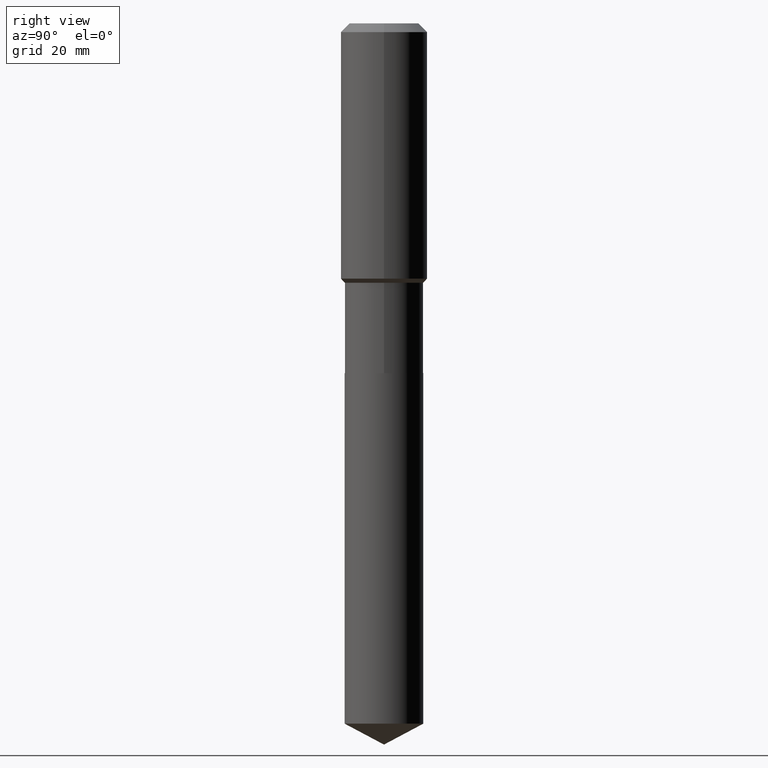
[diagram: clean part render]
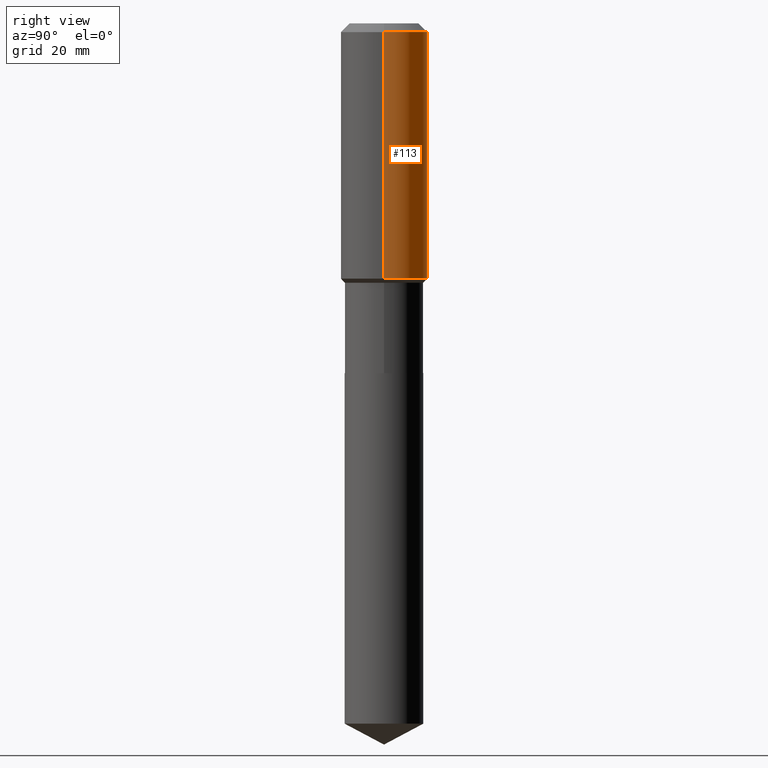
[diagram: same view with one face highlighted and labeled with its STEP entity id]
A machine part, right view. The second image highlights one B-rep face of the part: STEP entity #113.
In plain terms, the highlighted cylindrical surface (partial cylindrical patch) has radius 7.9997 mm, axis along (-0, 0, 1).
Its self-contained STEP definition (entity closure, byte-faithful):
#64 = CARTESIAN_POINT ( 'NONE',  ( 4.532431885383532521E-29, -6.471111513411885808E-15, -1.853399999999999936 ) ) ;
#65 = ORIENTED_EDGE ( 'NONE', *, *, #399, .F. ) ;
#71 = CARTESIAN_POINT ( 'NONE',  ( 0.3149500000000002298, -8.670395608749178046E-15, -1.853399999999999936 ) ) ;
#80 = VECTOR ( 'NONE', #409, 39.37007874015748143 ) ;
#82 = CARTESIAN_POINT ( 'NONE',  ( 0.3149500000000000077, -2.419212504871020909E-15, -0.06299000000000037902 ) ) ;
#92 = CARTESIAN_POINT ( 'NONE',  ( -0.3149500000000000077, -1.107665615196371650E-15, -0.06299000000000037902 ) ) ;
#103 = CARTESIAN_POINT ( 'NONE',  ( -0.3149500000000001743, 2.237854346276436774E-15, -1.549218606675783237E-29 ) ) ;
#106 = DIRECTION ( 'NONE',  ( 1.000000000000000000, -6.982962677686266711E-15, 0.000000000000000000 ) ) ;
#107 = ORIENTED_EDGE ( 'NONE', *, *, #329, .T. ) ;
#113 = ADVANCED_FACE ( 'NONE', ( #394 ), #284, .T. ) ;
#134 = VECTOR ( 'NONE', #142, 39.37007874015748143 ) ;
#142 = DIRECTION ( 'NONE',  ( -2.445468806185136877E-29, 3.491481338843145188E-15, 1.000000000000000000 ) ) ;
#177 = VERTEX_POINT ( 'NONE', #92 ) ;
#196 = EDGE_LOOP ( 'NONE', ( #270, #107, #312, #65 ) ) ;
#217 = DIRECTION ( 'NONE',  ( -2.445468806185136597E-29, 3.491481338843145583E-15, 1.000000000000000000 ) ) ;
#226 = CARTESIAN_POINT ( 'NONE',  ( 1.540400801016026505E-30, -2.199284095337310628E-16, -0.06299000000000037902 ) ) ;
#258 = CARTESIAN_POINT ( 'NONE',  ( -0.3149500000000002298, -4.233257167135448246E-15, -1.853399999999999936 ) ) ;
#270 = ORIENTED_EDGE ( 'NONE', *, *, #397, .T. ) ;
#276 = CIRCLE ( 'NONE', #390, 0.3149500000000000077 ) ;
#280 = CARTESIAN_POINT ( 'NONE',  ( 0.000000000000000000, 0.000000000000000000, 0.000000000000000000 ) ) ;
#284 = CYLINDRICAL_SURFACE ( 'NONE', #443, 0.3149500000000001743 ) ;
#290 = DIRECTION ( 'NONE',  ( -2.445468806185136597E-29, 3.491481338843145583E-15, 1.000000000000000000 ) ) ;
#295 = LINE ( 'NONE', #103, #80 ) ;
#310 = EDGE_CURVE ( 'NONE', #438, #177, #276, .T. ) ;
#312 = ORIENTED_EDGE ( 'NONE', *, *, #310, .F. ) ;
#325 = DIRECTION ( 'NONE',  ( 1.000000000000000000, -6.982962677686265922E-15, 4.876176775795935232E-29 ) ) ;
#329 = EDGE_CURVE ( 'NONE', #342, #177, #295, .T. ) ;
#334 = LINE ( 'NONE', #480, #134 ) ;
#340 = VERTEX_POINT ( 'NONE', #71 ) ;
#342 = VERTEX_POINT ( 'NONE', #258 ) ;
#352 = AXIS2_PLACEMENT_3D ( 'NONE', #64, #217, #369 ) ;
#365 = DIRECTION ( 'NONE',  ( -2.445468806185136597E-29, 3.491481338843145583E-15, 1.000000000000000000 ) ) ;
#369 = DIRECTION ( 'NONE',  ( 1.000000000000000000, -6.982962677686268288E-15, 0.000000000000000000 ) ) ;
#390 = AXIS2_PLACEMENT_3D ( 'NONE', #226, #365, #106 ) ;
#394 = FACE_OUTER_BOUND ( 'NONE', #196, .T. ) ;
#397 = EDGE_CURVE ( 'NONE', #340, #342, #436, .T. ) ;
#399 = EDGE_CURVE ( 'NONE', #340, #438, #334, .T. ) ;
#409 = DIRECTION ( 'NONE',  ( -2.445468806185136877E-29, 3.491481338843145188E-15, 1.000000000000000000 ) ) ;
#436 = CIRCLE ( 'NONE', #352, 0.3149500000000002298 ) ;
#438 = VERTEX_POINT ( 'NONE', #82 ) ;
#443 = AXIS2_PLACEMENT_3D ( 'NONE', #280, #290, #325 ) ;
#480 = CARTESIAN_POINT ( 'NONE',  ( 0.3149500000000001743, -2.199284095337290660E-15, 1.535751875536930690E-29 ) ) ;